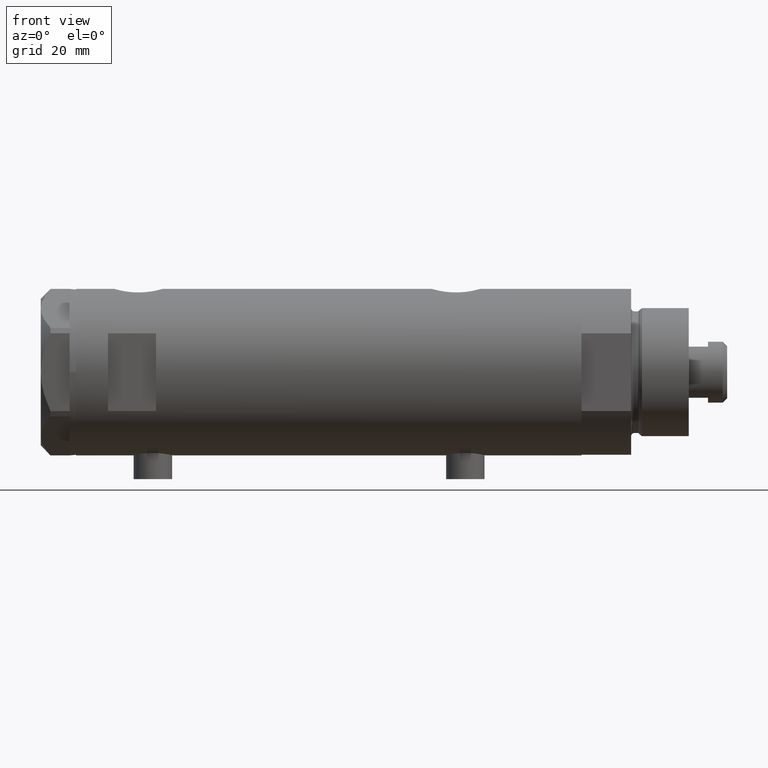
[diagram: clean part render]
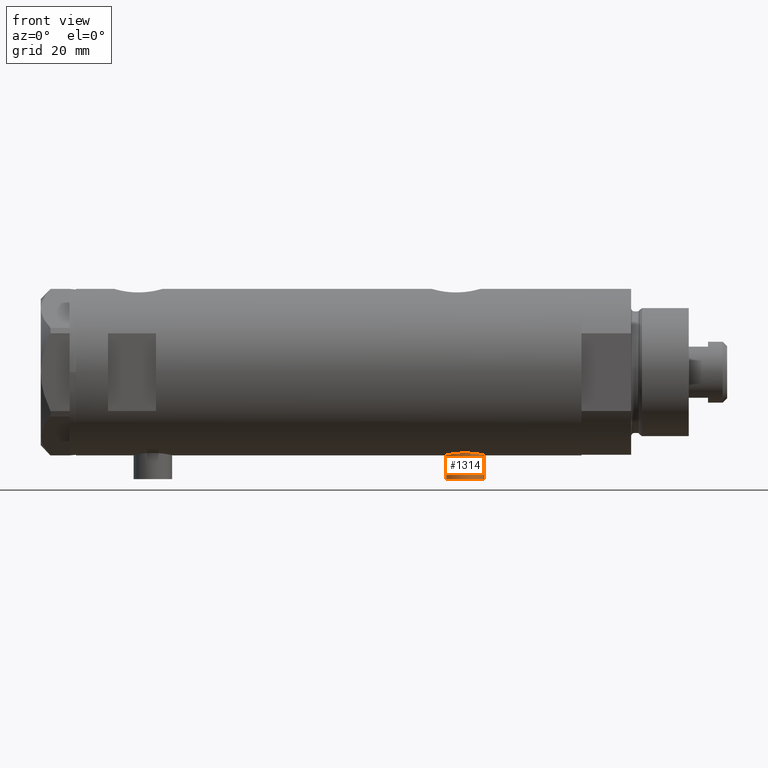
[diagram: same view with one face highlighted and labeled with its STEP entity id]
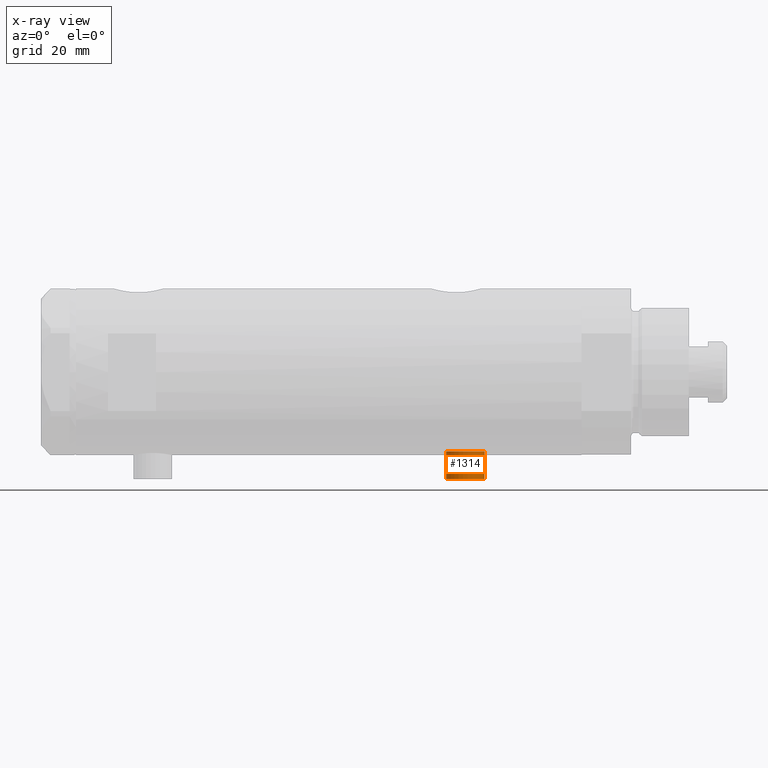
[diagram: x-ray of the same camera — body ghosted, the highlighted face saturated]
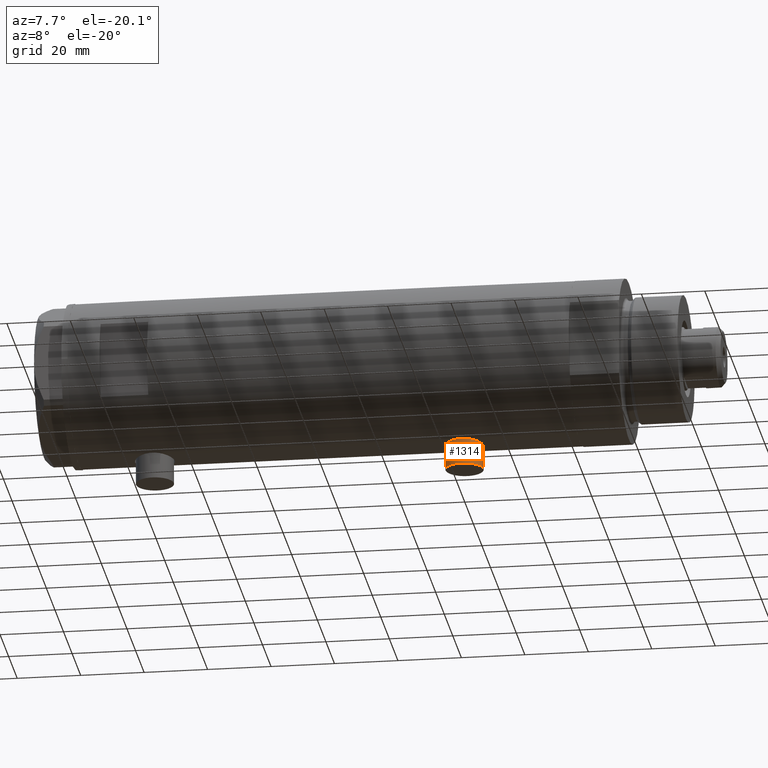
[diagram: same view with one face highlighted and labeled with its STEP entity id]
A machine part, front view. The second image highlights one B-rep face of the part: STEP entity #1314.
The next image is the same camera in x-ray: the body ghosted, the highlighted face saturated — about 0% of this face is hidden behind the body in this view.
A second angle (auxiliary view) of the same face is appended — the face is thin or edge-on in the first view.
In plain terms, the highlighted cylindrical surface (edge-blend (fillet) strip) has radius 6 mm, axis along (0, 0, 1).
Its self-contained STEP definition (entity closure, byte-faithful):
#28 = DIRECTION ( 'NONE',  ( 1.000000000000000000, -0.000000000000000000, -0.000000000000000000 ) ) ;
#43 = ORIENTED_EDGE ( 'NONE', *, *, #4456, .F. ) ;
#161 = EDGE_CURVE ( 'NONE', #1351, #4376, #3783, .T. ) ;
#173 = VECTOR ( 'NONE', #460, 1000.000000000000000 ) ;
#224 = EDGE_CURVE ( 'NONE', #1550, #3919, #2529, .T. ) ;
#268 = DIRECTION ( 'NONE',  ( 0.000000000000000000, 0.000000000000000000, 1.000000000000000000 ) ) ;
#311 = AXIS2_PLACEMENT_3D ( 'NONE', #2597, #3354, #268 ) ;
#403 = FACE_OUTER_BOUND ( 'NONE', #1707, .T. ) ;
#460 = DIRECTION ( 'NONE',  ( 1.000000000000000000, -0.000000000000000000, -0.000000000000000000 ) ) ;
#500 = VECTOR ( 'NONE', #920, 1000.000000000000000 ) ;
#668 = ORIENTED_EDGE ( 'NONE', *, *, #3564, .T. ) ;
#920 = DIRECTION ( 'NONE',  ( 1.000000000000000000, -0.000000000000000000, -0.000000000000000000 ) ) ;
#967 = CARTESIAN_POINT ( 'NONE',  ( -33.39999999999999858, 7.347880794884121708E-16, -36.64999999999999858 ) ) ;
#1314 = ADVANCED_FACE ( 'NONE', ( #403 ), #1931, .T. ) ;
#1351 = VERTEX_POINT ( 'NONE', #3359 ) ;
#1546 = DIRECTION ( 'NONE',  ( 0.000000000000000000, 0.000000000000000000, -1.000000000000000000 ) ) ;
#1550 = VERTEX_POINT ( 'NONE', #2926 ) ;
#1707 = EDGE_LOOP ( 'NONE', ( #43, #2845, #668, #2732 ) ) ;
#1823 = AXIS2_PLACEMENT_3D ( 'NONE', #3414, #28, #1546 ) ;
#1931 = CYLINDRICAL_SURFACE ( 'NONE', #1823, 6.000000000000005329 ) ;
#2122 = CARTESIAN_POINT ( 'NONE',  ( -24.80000000000000426, 7.347880794884118750E-16, -36.64999999999999858 ) ) ;
#2352 = CARTESIAN_POINT ( 'NONE',  ( -33.39999999999999858, 0.000000000000000000, -48.65000000000001279 ) ) ;
#2529 = CIRCLE ( 'NONE', #2691, 6.000000000000005329 ) ;
#2597 = CARTESIAN_POINT ( 'NONE',  ( -24.80000000000000426, 0.000000000000000000, -42.65000000000000568 ) ) ;
#2691 = AXIS2_PLACEMENT_3D ( 'NONE', #3906, #2777, #4668 ) ;
#2702 = CARTESIAN_POINT ( 'NONE',  ( -33.39999999999999858, 7.347880794884118750E-16, -36.64999999999999858 ) ) ;
#2732 = ORIENTED_EDGE ( 'NONE', *, *, #161, .T. ) ;
#2777 = DIRECTION ( 'NONE',  ( -1.000000000000000000, 0.000000000000000000, 0.000000000000000000 ) ) ;
#2845 = ORIENTED_EDGE ( 'NONE', *, *, #224, .F. ) ;
#2926 = CARTESIAN_POINT ( 'NONE',  ( -33.39999999999999858, 0.000000000000000000, -48.65000000000001279 ) ) ;
#3354 = DIRECTION ( 'NONE',  ( -1.000000000000000000, 0.000000000000000000, 0.000000000000000000 ) ) ;
#3359 = CARTESIAN_POINT ( 'NONE',  ( -24.80000000000000426, 0.000000000000000000, -48.65000000000001279 ) ) ;
#3414 = CARTESIAN_POINT ( 'NONE',  ( -33.39999999999999858, 0.000000000000000000, -42.65000000000000568 ) ) ;
#3564 = EDGE_CURVE ( 'NONE', #1550, #1351, #4213, .T. ) ;
#3783 = CIRCLE ( 'NONE', #311, 6.000000000000005329 ) ;
#3906 = CARTESIAN_POINT ( 'NONE',  ( -33.39999999999999858, 0.000000000000000000, -42.65000000000000568 ) ) ;
#3919 = VERTEX_POINT ( 'NONE', #2702 ) ;
#4213 = LINE ( 'NONE', #2352, #173 ) ;
#4344 = LINE ( 'NONE', #967, #500 ) ;
#4376 = VERTEX_POINT ( 'NONE', #2122 ) ;
#4456 = EDGE_CURVE ( 'NONE', #3919, #4376, #4344, .T. ) ;
#4668 = DIRECTION ( 'NONE',  ( 0.000000000000000000, 0.000000000000000000, 1.000000000000000000 ) ) ;